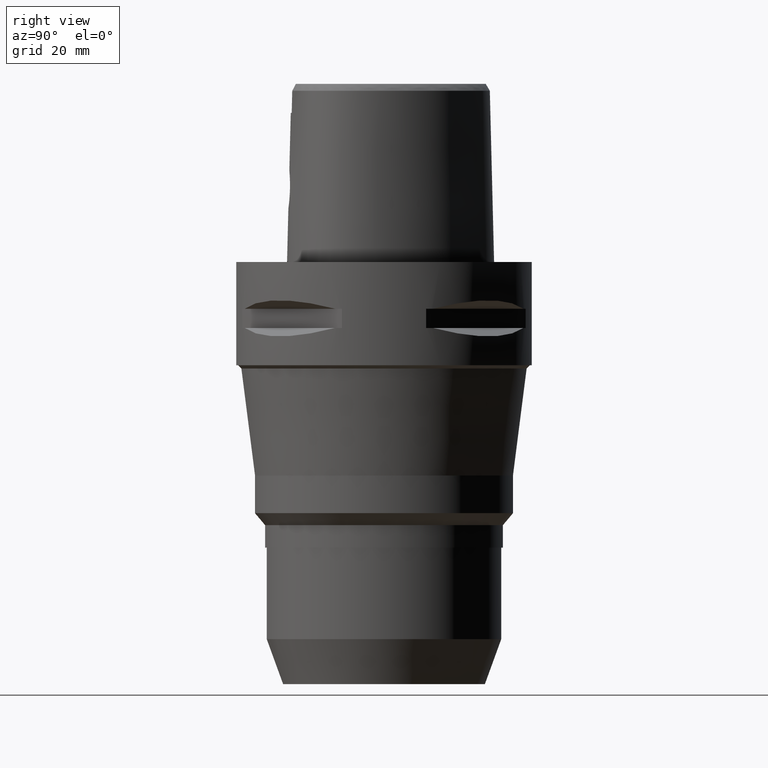
[diagram: clean part render]
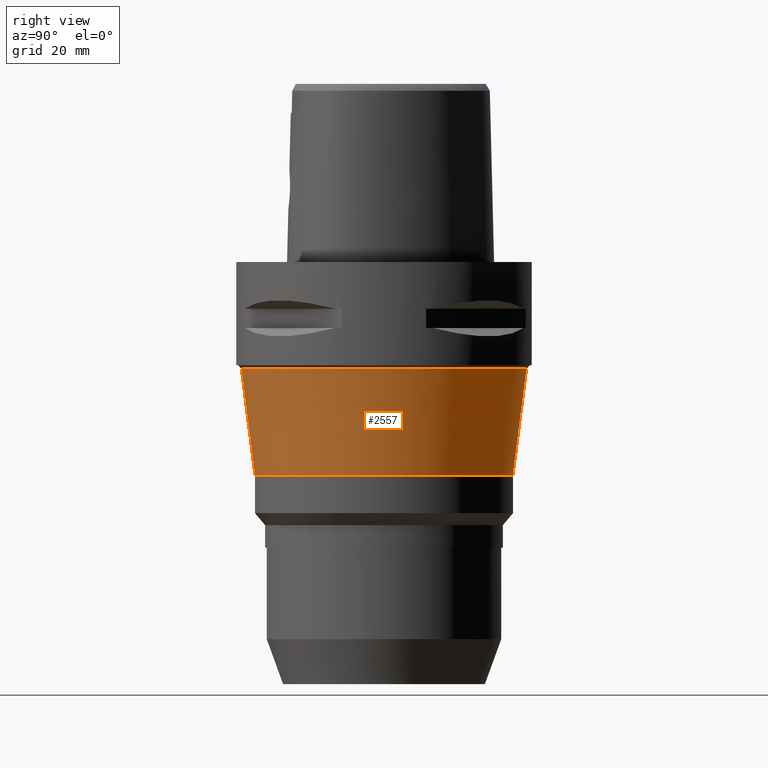
[diagram: same view with one face highlighted and labeled with its STEP entity id]
A machine part, right view. The second image highlights one B-rep face of the part: STEP entity #2557.
In plain terms, the highlighted conical surface has half-angle 7.275 deg.
Its self-contained STEP definition (entity closure, byte-faithful):
#562=DIRECTION('',(0.E0,-1.266318009230E-1,-9.919497905615E-1));
#563=VECTOR('',#562,2.298503434039E1);
#564=CARTESIAN_POINT('',(0.E0,3.041063629280E1,-2.27E1));
#565=LINE('',#564,#563);
#569=CARTESIAN_POINT('',(0.E0,0.E0,-4.55E1));
#570=DIRECTION('',(0.E0,0.E0,-1.E0));
#571=DIRECTION('',(0.E0,1.E0,0.E0));
#572=AXIS2_PLACEMENT_3D('',#569,#570,#571);
#577=CARTESIAN_POINT('',(0.E0,0.E0,-2.27E1));
#578=DIRECTION('',(0.E0,0.E0,1.E0));
#579=DIRECTION('',(0.E0,-1.E0,0.E0));
#580=AXIS2_PLACEMENT_3D('',#577,#578,#579);
#585=DIRECTION('',(0.E0,1.266318009230E-1,-9.919497905615E-1));
#586=VECTOR('',#585,2.298503434039E1);
#587=CARTESIAN_POINT('',(0.E0,-3.041063629280E1,-2.27E1));
#588=LINE('',#587,#586);
#1624=CARTESIAN_POINT('',(0.E0,3.041063629280E1,-2.27E1));
#1625=VERTEX_POINT('',#1624);
#1626=CARTESIAN_POINT('',(0.E0,-3.041063629280E1,-2.27E1));
#1627=VERTEX_POINT('',#1626);
#1628=CARTESIAN_POINT('',(0.E0,2.75E1,-4.55E1));
#1629=VERTEX_POINT('',#1628);
#1630=CARTESIAN_POINT('',(0.E0,-2.75E1,-4.55E1));
#1631=VERTEX_POINT('',#1630);
#2543=CARTESIAN_POINT('',(0.E0,0.E0,-3.41E1));
#2544=DIRECTION('',(0.E0,0.E0,1.E0));
#2545=DIRECTION('',(0.E0,1.E0,0.E0));
#2546=AXIS2_PLACEMENT_3D('',#2543,#2544,#2545);
#2547=CONICAL_SURFACE('',#2546,2.895531814640E1,7.275E0);
#2549=ORIENTED_EDGE('',*,*,#2548,.T.);
#2551=ORIENTED_EDGE('',*,*,#2550,.T.);
#2553=ORIENTED_EDGE('',*,*,#2552,.F.);
#2554=ORIENTED_EDGE('',*,*,#2536,.T.);
#2555=EDGE_LOOP('',(#2549,#2551,#2553,#2554));
#2556=FACE_OUTER_BOUND('',#2555,.F.);
#573=CIRCLE('',#572,2.75E1);
#581=CIRCLE('',#580,3.041063629280E1);
#2536=EDGE_CURVE('',#1627,#1625,#581,.T.);
#2548=EDGE_CURVE('',#1625,#1629,#565,.T.);
#2550=EDGE_CURVE('',#1629,#1631,#573,.T.);
#2552=EDGE_CURVE('',#1627,#1631,#588,.T.);
#2557=ADVANCED_FACE('',(#2556),#2547,.T.);